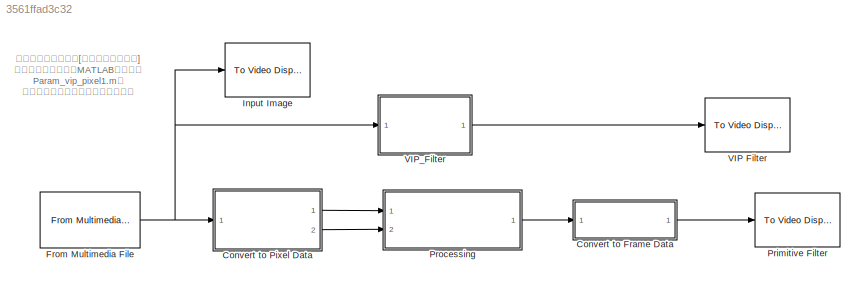
MODEL slx_3561ffad3c32
KIND model
CONFIG AbsTol = auto
CONFIG FixedStep = auto
CONFIG MaxStep = auto
CONFIG MinStep = auto
CONFIG PreLoadFcn = Param_vip_pixel1
CONFIG RelTol = 1e-3
CONFIG SampleTimeConstraint = Unconstrained
CONFIG Solver = FixedStepDiscrete
CONFIG SolverMode = Auto
CONFIG SolverName = FixedStepDiscrete
CONFIG StartTime = 0.0
CONFIG StopTime = 1
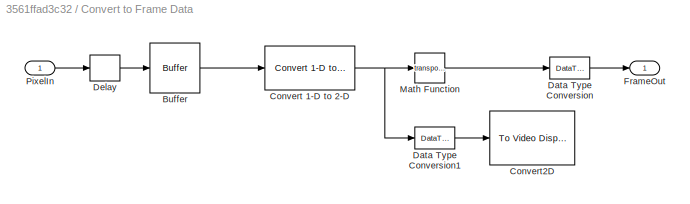
BLOCK [SubSystem] Convert to Frame Data
  Ports = [1, 1]
  RequestExecContextInheritance = off
  Variant = off
BLOCK [Buffer] Convert to Frame Data/Buffer
  N = 180*130
  TreatMby1Signals = One channel
BLOCK [Reference] Convert to Frame Data/Convert 1-D to 2-D  REF=dspsigattribs/Convert 1-D to 2-D
  Ports = [1, 1]
  SourceBlock = dspsigattribs/Convert 1-D to 2-D
  SourceType = Convert 1-D to 2-D
BLOCK [Reference] Convert to Frame Data/Convert2D  REF=visionsinks/To Video Display
  Ports = [1]
  SourceBlock = visionsinks/To Video Display
  SourceType = To Video Display
BLOCK [DataTypeConversion] Convert to Frame Data/Data Type Conversion
  OutDataTypeStr = uint8
  RndMeth = Floor
BLOCK [DataTypeConversion] Convert to Frame Data/Data Type Conversion1
  OutDataTypeStr = uint8
  RndMeth = Floor
BLOCK [Delay] Convert to Frame Data/Delay
  DelayLength = 160-(2+1)
  InitialCondition = 0
  InputPortMap = u0
  Ports = [1, 1]
  UserDataPersistent = on
BLOCK [Outport] Convert to Frame Data/FrameOut
  IconDisplay = Port number
BLOCK [Math] Convert to Frame Data/Math Function
  Operator = transpose
  Ports = [1, 1]
BLOCK [Inport] Convert to Frame Data/PixelIn
  IconDisplay = Port number
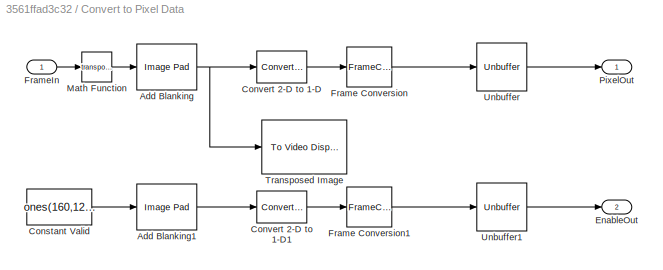
BLOCK [SubSystem] Convert to Pixel Data
  Ports = [1, 2]
  RequestExecContextInheritance = off
  Variant = off
BLOCK [Reference] Convert to Pixel Data/Add Blanking  REF=visionutilities/Image Pad
  Ports = [1, 1]
  SourceBlock = visionutilities/Image Pad
  SourceType = Image Pad
BLOCK [Reference] Convert to Pixel Data/Add Blanking1  REF=visionutilities/Image Pad
  Ports = [1, 1]
  SourceBlock = visionutilities/Image Pad
  SourceType = Image Pad
BLOCK [Constant] Convert to Pixel Data/Constant Valid
  OutDataTypeStr = boolean
  SampleTime = 1/24
  Value = ones(160,120)
BLOCK [Reference] Convert to Pixel Data/Convert 2-D to 1-D  REF=dspsigattribs/Convert 2-D to 1-D
  Ports = [1, 1]
  SourceBlock = dspsigattribs/Convert 2-D to 1-D
  SourceType = Convert 2-D to 1-D
BLOCK [Reference] Convert to Pixel Data/Convert 2-D to 1-D1  REF=dspsigattribs/Convert 2-D to 1-D
  Ports = [1, 1]
  SourceBlock = dspsigattribs/Convert 2-D to 1-D
  SourceType = Convert 2-D to 1-D
BLOCK [Outport] Convert to Pixel Data/EnableOut
  IconDisplay = Port number
  Port = 2
BLOCK [FrameConversion] Convert to Pixel Data/Frame Conversion
  InheritSamplingMode = off
  Ports = [1, 1]
BLOCK [FrameConversion] Convert to Pixel Data/Frame Conversion1
  InheritSamplingMode = off
  Ports = [1, 1]
BLOCK [Inport] Convert to Pixel Data/FrameIn
  IconDisplay = Port number
BLOCK [Math] Convert to Pixel Data/Math Function
  Operator = transpose
  Ports = [1, 1]
BLOCK [Outport] Convert to Pixel Data/PixelOut
  IconDisplay = Port number
BLOCK [Reference] Convert to Pixel Data/Transposed Image  REF=visionsinks/To Video Display
  Ports = [1]
  SourceBlock = visionsinks/To Video Display
  SourceType = To Video Display
BLOCK [Unbuffer] Convert to Pixel Data/Unbuffer
  Ports = [1, 1]
  SampleBasedProcessing = Same as frame based
BLOCK [Unbuffer] Convert to Pixel Data/Unbuffer1
  Ports = [1, 1]
  SampleBasedProcessing = Same as frame based
BLOCK [Reference] From Multimedia File  REF=dspvision/From Multimedia File
  Ports = [0, 1]
  SourceBlock = dspvision/From Multimedia File
  SourceType = From Multimedia File
BLOCK [Reference] Input Image  REF=visionsinks/To Video Display
  Ports = [1]
  SourceBlock = visionsinks/To Video Display
  SourceType = To Video Display
BLOCK [Reference] Primitive Filter  REF=visionsinks/To Video Display
  Ports = [1]
  SourceBlock = visionsinks/To Video Display
  SourceType = To Video Display
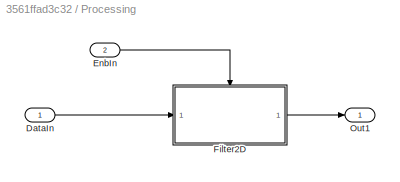
BLOCK [SubSystem] Processing
  Ports = [2, 1]
  RequestExecContextInheritance = off
  Variant = off
BLOCK [Inport] Processing/DataIn
  IconDisplay = Port number
BLOCK [Inport] Processing/EnbIn
  IconDisplay = Port number
  Port = 2
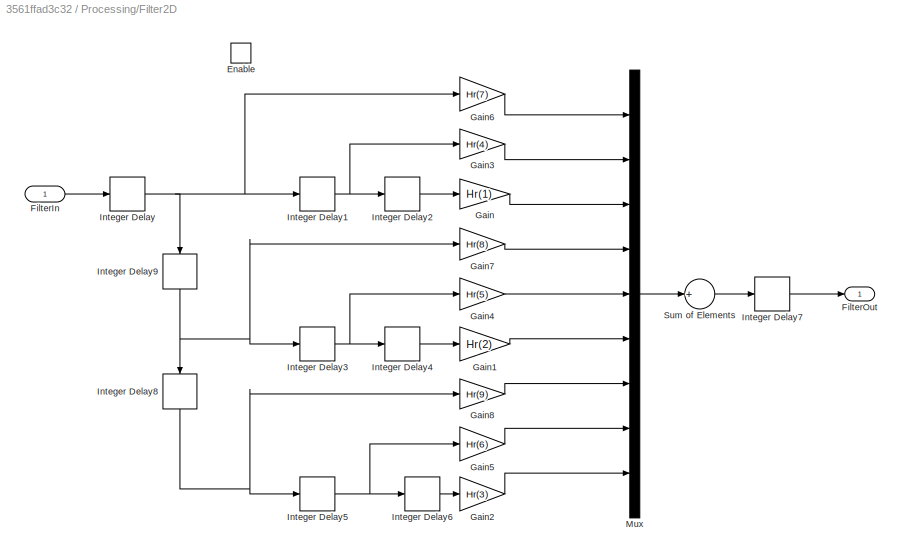
BLOCK [SubSystem] Processing/Filter2D
  Ports = [1, 1, 1]
  RequestExecContextInheritance = off
  Variant = off
BLOCK [EnablePort] Processing/Filter2D/Enable
  Ports = []
BLOCK [Inport] Processing/Filter2D/FilterIn
  IconDisplay = Port number
BLOCK [Outport] Processing/Filter2D/FilterOut
  IconDisplay = Port number
  InitialOutput = 0
BLOCK [Gain] Processing/Filter2D/Gain
  Gain = Hr(1)
  OutDataTypeStr = Inherit: Inherit via internal rule
  ParamDataTypeStr = fixdt(1,7,3)
  SaturateOnIntegerOverflow = off
BLOCK [Gain] Processing/Filter2D/Gain1
  Gain = Hr(2)
  OutDataTypeStr = Inherit: Inherit via internal rule
  ParamDataTypeStr = fixdt(1,7,3)
  SaturateOnIntegerOverflow = off
BLOCK [Gain] Processing/Filter2D/Gain2
  Gain = Hr(3)
  OutDataTypeStr = Inherit: Inherit via internal rule
  ParamDataTypeStr = fixdt(1,7,3)
  SaturateOnIntegerOverflow = off
BLOCK [Gain] Processing/Filter2D/Gain3
  Gain = Hr(4)
  OutDataTypeStr = Inherit: Inherit via internal rule
  ParamDataTypeStr = fixdt(1,7,3)
  RndMeth = Nearest
  SaturateOnIntegerOverflow = off
BLOCK [Gain] Processing/Filter2D/Gain4
  Gain = Hr(5)
  OutDataTypeStr = Inherit: Inherit via internal rule
  ParamDataTypeStr = fixdt(1,7,3)
  SaturateOnIntegerOverflow = off
BLOCK [Gain] Processing/Filter2D/Gain5
  Gain = Hr(6)
  OutDataTypeStr = Inherit: Inherit via internal rule
  ParamDataTypeStr = fixdt(1,7,3)
  SaturateOnIntegerOverflow = off
BLOCK [Gain] Processing/Filter2D/Gain6
  Gain = Hr(7)
  OutDataTypeStr = Inherit: Inherit via internal rule
  ParamDataTypeStr = fixdt(1,7,3)
  SaturateOnIntegerOverflow = off
BLOCK [Gain] Processing/Filter2D/Gain7
  Gain = Hr(8)
  OutDataTypeStr = Inherit: Inherit via internal rule
  ParamDataTypeStr = fixdt(1,7,3)
  SaturateOnIntegerOverflow = off
BLOCK [Gain] Processing/Filter2D/Gain8
  Gain = Hr(9)
  OutDataTypeStr = Inherit: Inherit via internal rule
  ParamDataTypeStr = fixdt(1,7,3)
  SaturateOnIntegerOverflow = off
BLOCK [Delay] Processing/Filter2D/Integer Delay
  DelayLength = 1
  InputPortMap = u0
  InputProcessing = Inherited
  Ports = [1, 1]
  UserDataPersistent = on
BLOCK [Delay] Processing/Filter2D/Integer Delay1
  DelayLength = 1
  InputPortMap = u0
  InputProcessing = Inherited
  Ports = [1, 1]
  UserDataPersistent = on
BLOCK [Delay] Processing/Filter2D/Integer Delay2
  DelayLength = 1
  InputPortMap = u0
  InputProcessing = Inherited
  Ports = [1, 1]
  UserDataPersistent = on
BLOCK [Delay] Processing/Filter2D/Integer Delay3
  DelayLength = 1
  InputPortMap = u0
  InputProcessing = Inherited
  Ports = [1, 1]
  UserDataPersistent = on
BLOCK [Delay] Processing/Filter2D/Integer Delay4
  DelayLength = 1
  InputPortMap = u0
  InputProcessing = Inherited
  Ports = [1, 1]
  UserDataPersistent = on
BLOCK [Delay] Processing/Filter2D/Integer Delay5
  DelayLength = 1
  InputPortMap = u0
  InputProcessing = Inherited
  Ports = [1, 1]
  UserDataPersistent = on
BLOCK [Delay] Processing/Filter2D/Integer Delay6
  DelayLength = 1
  InputPortMap = u0
  InputProcessing = Inherited
  Ports = [1, 1]
  UserDataPersistent = on
BLOCK [Delay] Processing/Filter2D/Integer Delay7
  DelayLength = 1
  InputPortMap = u0
  InputProcessing = Inherited
  Ports = [1, 1]
  UserDataPersistent = on
BLOCK [Delay] Processing/Filter2D/Integer Delay8
  DelayLength = 160
  InputPortMap = u0
  InputProcessing = Inherited
  Ports = [1, 1]
  UserDataPersistent = on
BLOCK [Delay] Processing/Filter2D/Integer Delay9
  DelayLength = 160
  InputPortMap = u0
  InputProcessing = Inherited
  Ports = [1, 1]
  UserDataPersistent = on
BLOCK [Mux] Processing/Filter2D/Mux
  DisplayOption = bar
  Inputs = 9
  Ports = [9, 1]
BLOCK [Sum] Processing/Filter2D/Sum of Elements
  InputSameDT = off
  Inputs = +
  OutDataTypeStr = Inherit: Inherit via internal rule
  Ports = [1, 1]
  RndMeth = Nearest
  SaturateOnIntegerOverflow = off
BLOCK [Outport] Processing/Out1
  IconDisplay = Port number
BLOCK [Reference] VIP Filter  REF=visionsinks/To Video Display
  Ports = [1]
  SourceBlock = visionsinks/To Video Display
  SourceType = To Video Display
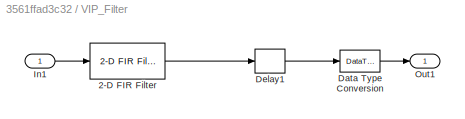
BLOCK [SubSystem] VIP_Filter
  Ports = [1, 1]
  RequestExecContextInheritance = off
  Variant = off
BLOCK [Reference] VIP_Filter/2-D FIR Filter  REF=visionfilter/2-D FIR Filter
  Ports = [1, 1]
  SourceBlock = visionfilter/2-D FIR Filter
  SourceType = 2-D FIR Filter
BLOCK [DataTypeConversion] VIP_Filter/Data Type Conversion
  OutDataTypeStr = uint8
  RndMeth = Floor
BLOCK [Delay] VIP_Filter/Delay1
  DelayLength = 1
  InitialCondition = 0
  InputPortMap = u0
  Ports = [1, 1]
  UseCircularBuffer = on
  UserDataPersistent = on
BLOCK [Inport] VIP_Filter/In1
  IconDisplay = Port number
BLOCK [Outport] VIP_Filter/Out1
  IconDisplay = Port number
ANNOTATION (root): ファイルメニューの[モデルプロパティ] ⇒コールバックにてMATLABファイル Param_vip_pixel1.mを モデル起動時にロードしています。
LINE Convert to Frame Data/Buffer:1 -> Convert to Frame Data/Convert 1-D to 2-D:1
NET Convert to Frame Data/Convert 1-D to 2-D:1 -> Convert to Frame Data/Data Type Conversion1:1, Convert to Frame Data/Math Function:1
LINE Convert to Frame Data/Data Type Conversion1:1 -> Convert to Frame Data/Convert2D:1
LINE Convert to Frame Data/Data Type Conversion:1 -> Convert to Frame Data/FrameOut:1
LINE Convert to Frame Data/Delay:1 -> Convert to Frame Data/Buffer:1
LINE Convert to Frame Data/Math Function:1 -> Convert to Frame Data/Data Type Conversion:1
LINE Convert to Frame Data/PixelIn:1 -> Convert to Frame Data/Delay:1
LINE Convert to Frame Data:1 -> Primitive Filter:1
LINE Convert to Pixel Data/Add Blanking1:1 -> Convert to Pixel Data/Convert 2-D to 1-D1:1
NET Convert to Pixel Data/Add Blanking:1 -> Convert to Pixel Data/Convert 2-D to 1-D:1, Convert to Pixel Data/Transposed Image:1
LINE Convert to Pixel Data/Constant Valid:1 -> Convert to Pixel Data/Add Blanking1:1
LINE Convert to Pixel Data/Convert 2-D to 1-D1:1 -> Convert to Pixel Data/Frame Conversion1:1
LINE Convert to Pixel Data/Convert 2-D to 1-D:1 -> Convert to Pixel Data/Frame Conversion:1
LINE Convert to Pixel Data/Frame Conversion1:1 -> Convert to Pixel Data/Unbuffer1:1
LINE Convert to Pixel Data/Frame Conversion:1 -> Convert to Pixel Data/Unbuffer:1
LINE Convert to Pixel Data/FrameIn:1 -> Convert to Pixel Data/Math Function:1
LINE Convert to Pixel Data/Math Function:1 -> Convert to Pixel Data/Add Blanking:1
LINE Convert to Pixel Data/Unbuffer1:1 -> Convert to Pixel Data/EnableOut:1
LINE Convert to Pixel Data/Unbuffer:1 -> Convert to Pixel Data/PixelOut:1
LINE Convert to Pixel Data:1 -> Processing:1
LINE Convert to Pixel Data:2 -> Processing:2
NET From Multimedia File:1 -> Convert to Pixel Data:1, Input Image:1, VIP_Filter:1
LINE Processing/DataIn:1 -> Processing/Filter2D:1
LINE Processing/EnbIn:1 -> Processing/Filter2D:enable
LINE Processing/Filter2D/FilterIn:1 -> Processing/Filter2D/Integer Delay:1
LINE Processing/Filter2D/Gain1:1 -> Processing/Filter2D/Mux:6
LINE Processing/Filter2D/Gain2:1 -> Processing/Filter2D/Mux:9
LINE Processing/Filter2D/Gain3:1 -> Processing/Filter2D/Mux:2
LINE Processing/Filter2D/Gain4:1 -> Processing/Filter2D/Mux:5
LINE Processing/Filter2D/Gain5:1 -> Processing/Filter2D/Mux:8
LINE Processing/Filter2D/Gain6:1 -> Processing/Filter2D/Mux:1
LINE Processing/Filter2D/Gain7:1 -> Processing/Filter2D/Mux:4
LINE Processing/Filter2D/Gain8:1 -> Processing/Filter2D/Mux:7
LINE Processing/Filter2D/Gain:1 -> Processing/Filter2D/Mux:3
NET Processing/Filter2D/Integer Delay1:1 -> Processing/Filter2D/Gain3:1, Processing/Filter2D/Integer Delay2:1
LINE Processing/Filter2D/Integer Delay2:1 -> Processing/Filter2D/Gain:1
NET Processing/Filter2D/Integer Delay3:1 -> Processing/Filter2D/Gain4:1, Processing/Filter2D/Integer Delay4:1
LINE Processing/Filter2D/Integer Delay4:1 -> Processing/Filter2D/Gain1:1
NET Processing/Filter2D/Integer Delay5:1 -> Processing/Filter2D/Gain5:1, Processing/Filter2D/Integer Delay6:1
LINE Processing/Filter2D/Integer Delay6:1 -> Processing/Filter2D/Gain2:1
LINE Processing/Filter2D/Integer Delay7:1 -> Processing/Filter2D/FilterOut:1
NET Processing/Filter2D/Integer Delay8:1 -> Processing/Filter2D/Gain8:1, Processing/Filter2D/Integer Delay5:1
NET Processing/Filter2D/Integer Delay9:1 -> Processing/Filter2D/Gain7:1, Processing/Filter2D/Integer Delay3:1, Processing/Filter2D/Integer Delay8:1
NET Processing/Filter2D/Integer Delay:1 -> Processing/Filter2D/Gain6:1, Processing/Filter2D/Integer Delay1:1, Processing/Filter2D/Integer Delay9:1
LINE Processing/Filter2D/Mux:1 -> Processing/Filter2D/Sum of Elements:1
LINE Processing/Filter2D/Sum of Elements:1 -> Processing/Filter2D/Integer Delay7:1
LINE Processing/Filter2D:1 -> Processing/Out1:1
LINE Processing:1 -> Convert to Frame Data:1
LINE VIP_Filter/2-D FIR Filter:1 -> VIP_Filter/Delay1:1
LINE VIP_Filter/Data Type Conversion:1 -> VIP_Filter/Out1:1
LINE VIP_Filter/Delay1:1 -> VIP_Filter/Data Type Conversion:1
LINE VIP_Filter/In1:1 -> VIP_Filter/2-D FIR Filter:1
LINE VIP_Filter:1 -> VIP Filter:1
note: NET lines group one-source signal fan-out (src -> all destinations, sorted); 1:1 wires keep LINE
